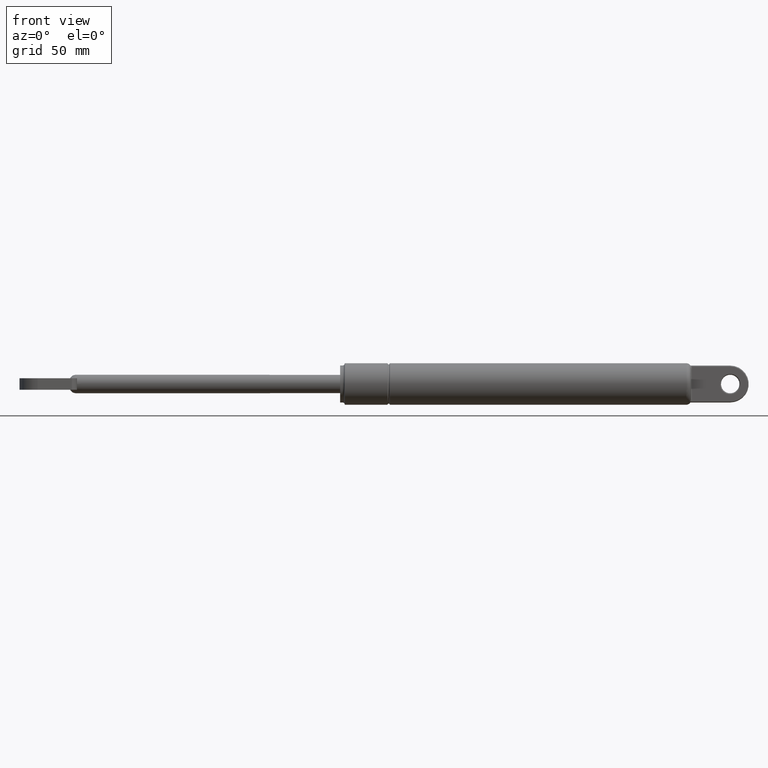
[diagram: clean part render]
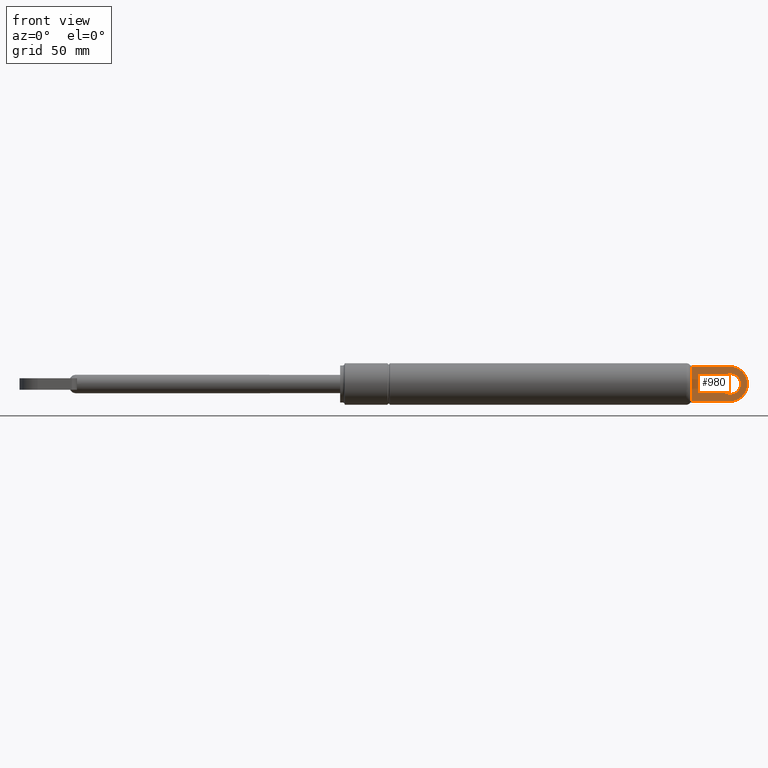
[diagram: same view with one face highlighted and labeled with its STEP entity id]
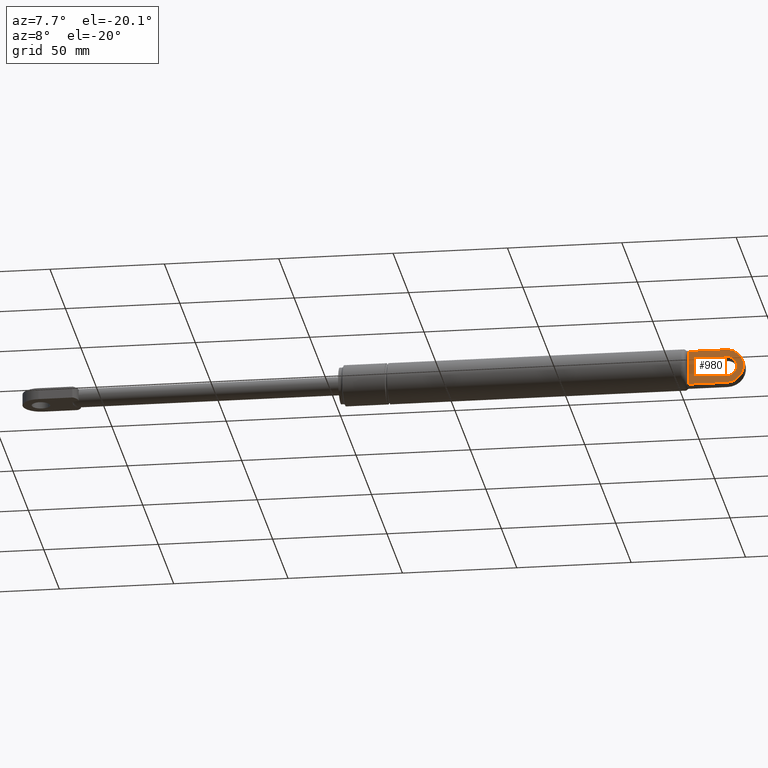
[diagram: same view with one face highlighted and labeled with its STEP entity id]
A machine part, front view. The second image highlights one B-rep face of the part: STEP entity #980.
A second angle (auxiliary view) of the same face is appended — the face is thin or edge-on in the first view.
In plain terms, the highlighted planar face has unit normal (0, -1, 0).
Its self-contained STEP definition (entity closure, byte-faithful):
#56=B_SPLINE_CURVE_WITH_KNOTS('',3,(#1499,#1500,#1501,#1502),
 .UNSPECIFIED.,.F.,.F.,(4,4),(-0.458753506146986,-0.337946859791609),
 .UNSPECIFIED.);
#57=B_SPLINE_CURVE_WITH_KNOTS('',3,(#1506,#1507,#1508,#1509),
 .UNSPECIFIED.,.F.,.F.,(4,4),(-0.120806646377568,-5.5511151231258E-16),
 .UNSPECIFIED.);
#89=LINE('',#1497,#131);
#90=LINE('',#1504,#132);
#91=LINE('',#1511,#133);
#131=VECTOR('',#1196,16.7442382770954);
#132=VECTOR('',#1197,12.6491106406735);
#133=VECTOR('',#1198,16.7442382772499);
#171=PLANE('',#1056);
#224=FACE_BOUND('',#323,.T.);
#251=FACE_OUTER_BOUND('',#322,.T.);
#322=EDGE_LOOP('',(#712,#713,#714,#715,#716,#717));
#323=EDGE_LOOP('',(#718));
#412=CIRCLE('',#1055,4.5);
#413=CIRCLE('',#1057,7.50000000000001);
#478=VERTEX_POINT('',#1492);
#479=VERTEX_POINT('',#1495);
#480=VERTEX_POINT('',#1496);
#481=VERTEX_POINT('',#1498);
#482=VERTEX_POINT('',#1503);
#483=VERTEX_POINT('',#1505);
#484=VERTEX_POINT('',#1510);
#573=EDGE_CURVE('',#478,#478,#412,.T.);
#574=EDGE_CURVE('',#479,#480,#89,.T.);
#575=EDGE_CURVE('',#481,#479,#56,.T.);
#576=EDGE_CURVE('',#482,#481,#90,.T.);
#577=EDGE_CURVE('',#483,#482,#57,.T.);
#578=EDGE_CURVE('',#484,#483,#91,.T.);
#579=EDGE_CURVE('',#480,#484,#413,.T.);
#712=ORIENTED_EDGE('',*,*,#574,.F.);
#713=ORIENTED_EDGE('',*,*,#575,.F.);
#714=ORIENTED_EDGE('',*,*,#576,.F.);
#715=ORIENTED_EDGE('',*,*,#577,.F.);
#716=ORIENTED_EDGE('',*,*,#578,.F.);
#717=ORIENTED_EDGE('',*,*,#579,.F.);
#718=ORIENTED_EDGE('',*,*,#573,.F.);
#980=ADVANCED_FACE('',(#251,#224),#171,.T.);
#1055=AXIS2_PLACEMENT_3D('',#1493,#1192,#1193);
#1056=AXIS2_PLACEMENT_3D('',#1494,#1194,#1195);
#1057=AXIS2_PLACEMENT_3D('',#1512,#1199,#1200);
#1192=DIRECTION('center_axis',(0.,-1.,0.));
#1193=DIRECTION('ref_axis',(1.,0.,0.));
#1194=DIRECTION('center_axis',(0.,-1.,0.));
#1195=DIRECTION('ref_axis',(0.,0.,-1.));
#1196=DIRECTION('',(1.,0.,0.));
#1197=DIRECTION('',(0.,0.,1.));
#1198=DIRECTION('',(-1.,0.,0.));
#1199=DIRECTION('center_axis',(0.,1.,0.));
#1200=DIRECTION('ref_axis',(1.,0.,1.78769929859525E-15));
#1492=CARTESIAN_POINT('',(164.496710490721,-2.5,1.33686651129185E-14));
#1493=CARTESIAN_POINT('Origin',(168.996710490721,-2.5,1.39197561725348E-14));
#1494=CARTESIAN_POINT('Origin',(162.242855013015,-2.5,1.20940107357813E-15));
#1495=CARTESIAN_POINT('',(152.252472213625,-2.5,7.49999999982591));
#1496=CARTESIAN_POINT('',(168.996710490721,-2.5,7.5));
#1497=CARTESIAN_POINT('',(157.119782751868,-2.5,7.5));
#1498=CARTESIAN_POINT('',(152.496710490721,-2.5,6.32455532033677));
#1499=CARTESIAN_POINT('Ctrl Pts',(152.496710490721,-2.5,6.32455532033677));
#1500=CARTESIAN_POINT('Ctrl Pts',(152.496710490721,-2.5,6.72724414152136));
#1501=CARTESIAN_POINT('Ctrl Pts',(152.413568969062,-2.5,7.13150224897533));
#1502=CARTESIAN_POINT('Ctrl Pts',(152.251140058415,-2.5,7.49941186085851));
#1503=CARTESIAN_POINT('',(152.496710490721,-2.5,-6.32455532033677));
#1504=CARTESIAN_POINT('',(152.496710490721,-2.5,2.25));
#1505=CARTESIAN_POINT('',(152.252472213471,-2.5,-7.49999999999999));
#1506=CARTESIAN_POINT('Ctrl Pts',(152.251140058325,-2.5,-7.49941186106127));
#1507=CARTESIAN_POINT('Ctrl Pts',(152.413568969031,-2.5,-7.13150224912385));
#1508=CARTESIAN_POINT('Ctrl Pts',(152.496710490721,-2.5,-6.72724414159534));
#1509=CARTESIAN_POINT('Ctrl Pts',(152.496710490721,-2.5,-6.32455532033677));
#1510=CARTESIAN_POINT('',(168.996710490721,-2.5,-7.5));
#1511=CARTESIAN_POINT('',(165.619782751868,-2.5,-7.5));
#1512=CARTESIAN_POINT('Origin',(168.996710490721,-2.5,-1.39197561725348E-14));